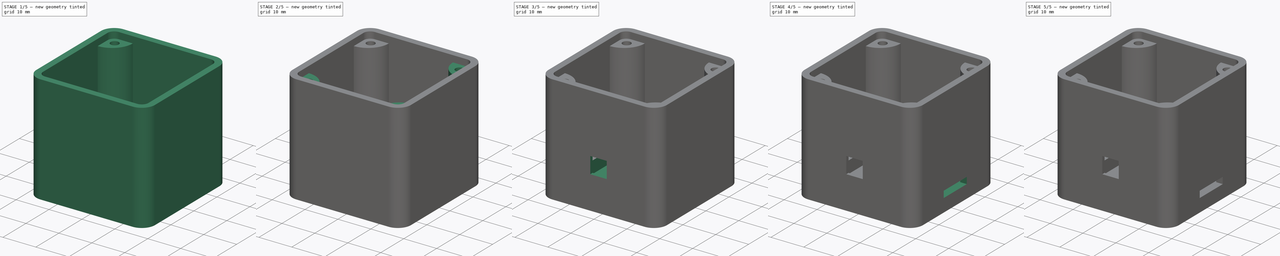
[diagram: build sequence overview — one tinted view per stage of 5, left to right]
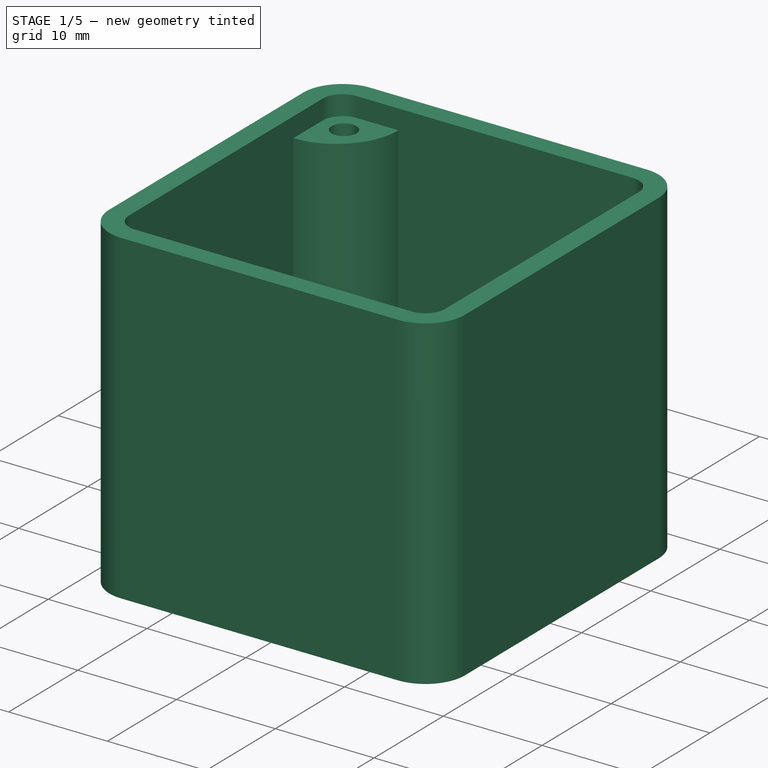
[diagram: stage 1 of 5 — iso view after this stage's code; geometry added in this stage tinted green]
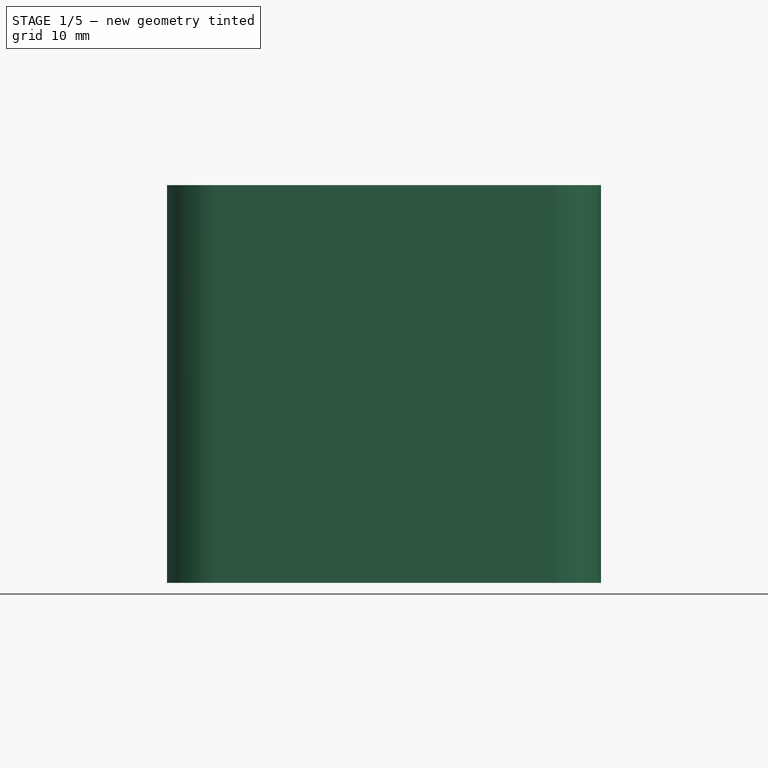
[diagram: stage 1 of 5 — front view after this stage's code; geometry added in this stage tinted green]
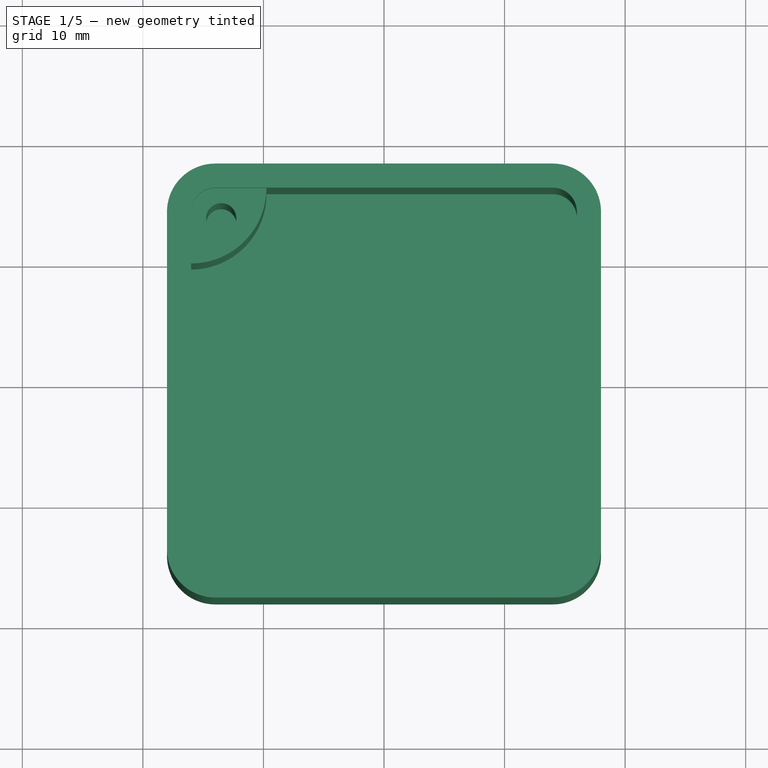
[diagram: stage 1 of 5 — top view after this stage's code; geometry added in this stage tinted green]
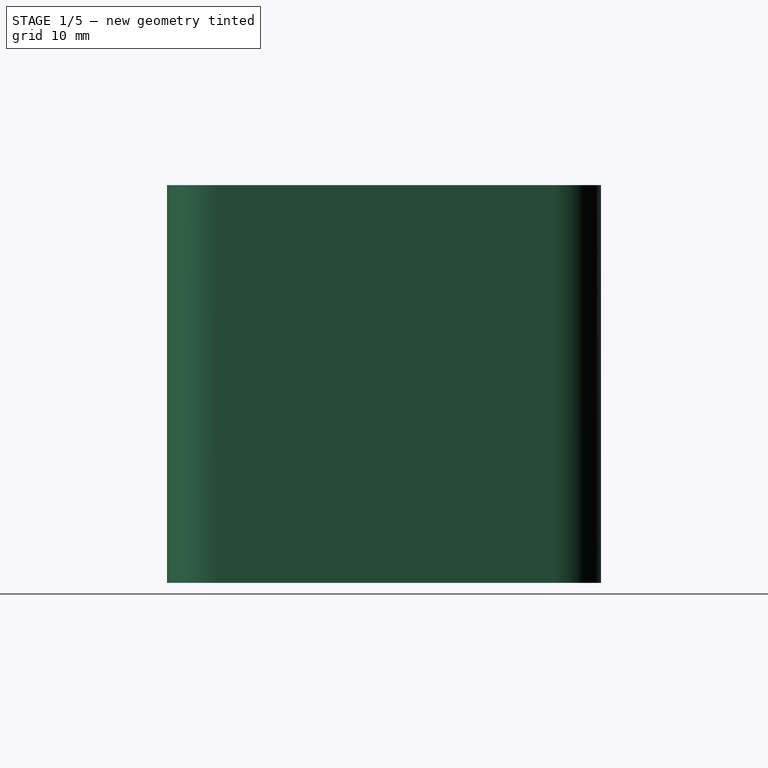
[diagram: stage 1 of 5 — right view after this stage's code; geometry added in this stage tinted green]
FCSTD DOCUMENT  (FreeCAD 0.20R29603 (Git))
Label: qwesp32sensecase
License: All rights reserved
LicenseURL: http://en.wikipedia.org/wiki/All_rights_reserved
objects: Sketcher::SketchObject×17, PartDesign::Pocket×9, PartDesign::Pad×5, PartDesign::Mirrored×4, PartDesign::MultiTransform×2, PartDesign::Body×2, Spreadsheet::Sheet×1, PartDesign::Chamfer×1, App::Part×1
note: 55 computed .brp shape members not serialized (recipe doc carries the construction recipe); baked Part::Feature solids carry a one-line shape summary decoded from their .brp

FEATURE [Sketcher::SketchObject] Sketch
  AttachmentOffset = pos=(0,0,-2) rot=(0,0,1;0rad)
  FullyConstrained = true
  MapMode = 5
  Placement = pos=(0,0,-2) rot=(0,0,1;0rad)
  Support = -> [XY_Plane]
  expr: .AttachmentOffset.Base.z = -Spreadsheet.box_wall_thickness
  expr: Constraints[20] = Spreadsheet.outside_radius
  expr: Constraints[21] = Spreadsheet.box_length
  expr: Constraints[22] = Spreadsheet.box_width
  sketch-geometry (10):
    g0: ArcOfCircle CenterX=-14 CenterY=14 CenterZ=0 NormalX=0 NormalY=0 NormalZ=1 AngleXU=0 Radius=4 StartAngle=1.5708 EndAngle=3.14159
    g1: LineSegment StartX=-14 StartY=18 StartZ=0 EndX=14 EndY=18 EndZ=0
    g2: ArcOfCircle CenterX=14 CenterY=14 CenterZ=0 NormalX=0 NormalY=0 NormalZ=1 AngleXU=0 Radius=4 StartAngle=2.7e-15 EndAngle=1.5708
    g3: LineSegment StartX=18 StartY=14 StartZ=0 EndX=18 EndY=-14 EndZ=0
    g4: ArcOfCircle CenterX=14 CenterY=-14 CenterZ=0 NormalX=0 NormalY=0 NormalZ=1 AngleXU=0 Radius=4 StartAngle=4.71239 EndAngle=6.28319
    g5: LineSegment StartX=14 StartY=-18 StartZ=0 EndX=-14 EndY=-18 EndZ=0
    g6: ArcOfCircle CenterX=-14 CenterY=-14 CenterZ=0 NormalX=0 NormalY=0 NormalZ=1 AngleXU=0 Radius=4 StartAngle=3.14159 EndAngle=4.71239
    g7: LineSegment StartX=-18 StartY=-14 StartZ=0 EndX=-18 EndY=14 EndZ=0
    g8: GeomPoint X=-18 Y=18 Z=0
    g9: GeomPoint X=18 Y=-18 Z=0
  constraints (23):
    c: Tangent(g0,g1) = 1.5708
    c: Tangent(g1,g2) = 1.5708
    c: Tangent(g2,g3) = 1.5708
    c: Tangent(g3,g4) = 1.5708
    c: Tangent(g4,g5) = 1.5708
    c: Tangent(g5,g6) = 1.5708
    c: Tangent(g6,g7) = 1.5708
    c: Tangent(g7,g0) = 1.5708
    c: Horizontal(g1)
    c: Horizontal(g5)
    c: Vertical(g3)
    c: Vertical(g7)
    c: Equal(g0,g2)
    c: Equal(g2,g4)
    c: Equal(g4,g6)
    c: PointOnObject(g8,g1)
    c: PointOnObject(g8,g7)
    c: PointOnObject(g9,g3)
    c: PointOnObject(g9,g5)
    c: Symmetric(g0,g4,g-1)
    c: Radius(g0) = 4
    c: DistanceX(g0,g2) = 36
    c: DistanceY(g4,g1) = 36
FEATURE [PartDesign::Pad] Pad  label="outer"
  Direction = (0,0,1)
  Length = 33
  Length2 = 10
  Profile = -> Sketch
  ReferenceAxis = -> Sketch [N_Axis]
  Type = 0
  expr: Length = Spreadsheet.box_height
FEATURE [Spreadsheet::Sheet] Spreadsheet
  cells = A2=box_length; B2(box_length)=36; A3=box_width; B3(box_width)=36; A4=box_height; B4(box_height)=33; A5=outside_radius; B5(outside_radius)==B7 + 2; C5=Calculated; A6=inside_radius; B6(inside_radius)==B5 - B7; C6=Calculated; A7=box_wall_thickness; B7(box_wall_thickness)=2; A8=hole_dia; B8(hole_dia)=2.5; A9=lug_height; B9(lug_height)==B4 - B7 * 2; C9=Calculated; A10=lug_radius; B10(lug_radius)==B8 * 2.5; C10=Calculated; A11=hole_center_length; B11(hole_center_length)==B13 / 2 - B8; C11=Calculated; A12=hole_center_width; B12(hole_center_width)==B14 / 2 - B8; C12=Calculated; A13=box_inside_length; B13(box_inside_length)==B2 - B7 * 2; C13=Calculated; A14=box_inside_width; B14(box_inside_width)==B3 - 2 * B7; C14=Calculated; A16=clearance_sides; B16(clearance_sides)=0.3; A17=clearance_hole; B17(clearance_hole)==B8 + 2; C17=Calculated; A18=lid_height; B18(lid_height)=2; C18=Calculated
FEATURE [Sketcher::SketchObject] Sketch001
  FullyConstrained = true
  expr: Constraints[20] = Spreadsheet.inside_radius
  expr: Constraints[21] = Spreadsheet.box_inside_length
  expr: Constraints[22] = Spreadsheet.box_inside_width
  sketch-geometry (10):
    g0: ArcOfCircle CenterX=-14 CenterY=14 CenterZ=0 NormalX=0 NormalY=0 NormalZ=1 AngleXU=0 Radius=2 StartAngle=1.5708 EndAngle=3.14159
    g1: LineSegment StartX=-14 StartY=16 StartZ=0 EndX=14 EndY=16 EndZ=0
    g2: ArcOfCircle CenterX=14 CenterY=14 CenterZ=0 NormalX=0 NormalY=0 NormalZ=1 AngleXU=0 Radius=2 StartAngle=1.8e-15 EndAngle=1.5708
    g3: LineSegment StartX=16 StartY=14 StartZ=0 EndX=16 EndY=-14 EndZ=0
    g4: ArcOfCircle CenterX=14 CenterY=-14 CenterZ=0 NormalX=0 NormalY=0 NormalZ=1 AngleXU=0 Radius=2 StartAngle=4.71239 EndAngle=6.28319
    g5: LineSegment StartX=14 StartY=-16 StartZ=0 EndX=-14 EndY=-16 EndZ=0
    g6: ArcOfCircle CenterX=-14 CenterY=-14 CenterZ=0 NormalX=0 NormalY=0 NormalZ=1 AngleXU=0 Radius=2 StartAngle=3.14159 EndAngle=4.71239
    g7: LineSegment StartX=-16 StartY=-14 StartZ=0 EndX=-16 EndY=14 EndZ=0
    g8: GeomPoint X=-16 Y=16 Z=0
    g9: GeomPoint X=16 Y=-16 Z=0
  constraints (23):
    c: Tangent(g0,g1) = 1.5708
    c: Tangent(g1,g2) = 1.5708
    c: Tangent(g2,g3) = 1.5708
    c: Tangent(g3,g4) = 1.5708
    c: Tangent(g4,g5) = 1.5708
    c: Tangent(g5,g6) = 1.5708
    c: Tangent(g6,g7) = 1.5708
    c: Tangent(g7,g0) = 1.5708
    c: Horizontal(g1)
    c: Horizontal(g5)
    c: Vertical(g3)
    c: Vertical(g7)
    c: Equal(g0,g2)
    c: Equal(g2,g4)
    c: Equal(g4,g6)
    c: PointOnObject(g8,g1)
    c: PointOnObject(g8,g7)
    c: PointOnObject(g9,g3)
    c: PointOnObject(g9,g5)
    c: Symmetric(g0,g4,g-1)
    c: Radius(g0) = 2
    c: DistanceX(g6,g3) = 32
    c: DistanceY(g5,g0) = 32
FEATURE [PartDesign::Pocket] Pocket  label="innerwall"
  BaseFeature = -> Pad
  Direction = (0,0,-1)
  Length = 36
  Length2 = 5
  Profile = -> Sketch001
  ReferenceAxis = -> Sketch001 [N_Axis]
  Reversed = true
  Type = 1
FEATURE [Sketcher::SketchObject] Sketch002
  FullyConstrained = true
  MapMode = 5
  Support = -> [XY_Plane]
  expr: Constraints[10] = Spreadsheet.hole_center_length
  expr: Constraints[11] = Spreadsheet.hole_center_width
  expr: Constraints[6] = Spreadsheet.hole_dia
  expr: Constraints[7] = Spreadsheet.lug_radius
  expr: Constraints[8] = Spreadsheet.hole_dia
  expr: Constraints[9] = Spreadsheet.hole_dia
  sketch-geometry (4):
    g0: LineSegment StartX=-16 StartY=16 StartZ=0 EndX=-9.75 EndY=16 EndZ=0
    g1: LineSegment StartX=-16 StartY=16 StartZ=0 EndX=-16 EndY=9.75 EndZ=0
    g2: ArcOfCircle CenterX=-16 CenterY=16 CenterZ=0 NormalX=0 NormalY=0 NormalZ=1 AngleXU=0 Radius=6.25 StartAngle=4.71239 EndAngle=6.28319
    g3: Circle CenterX=-13.5 CenterY=13.5 CenterZ=0 NormalX=0 NormalY=0 NormalZ=1 AngleXU=0 Radius=1.25
  constraints (12):
    c: Horizontal(g0)
    c: Coincident(g1,g0)
    c: Vertical(g1)
    c: Coincident(g2,g0)
    c: Coincident(g2,g0)
    c: Coincident(g2,g1)
    c: Diameter(g3) = 2.5
    c: Radius(g2) = 6.25
    c: DistanceX(g0,g3) = 2.5
    c: DistanceY(g3,g0) = 2.5
    c: DistanceX(g3,g-1) = 13.5
    c: DistanceY(g-1,g3) = 13.5
FEATURE [PartDesign::Pad] Pad001  label="screw housing"
  BaseFeature = -> Pocket
  Direction = (0,0,1)
  Length = 29
  Length2 = 10
  Profile = -> Sketch002
  ReferenceAxis = -> Sketch002 [N_Axis]
  Type = 0
  expr: Length = Spreadsheet.lug_height
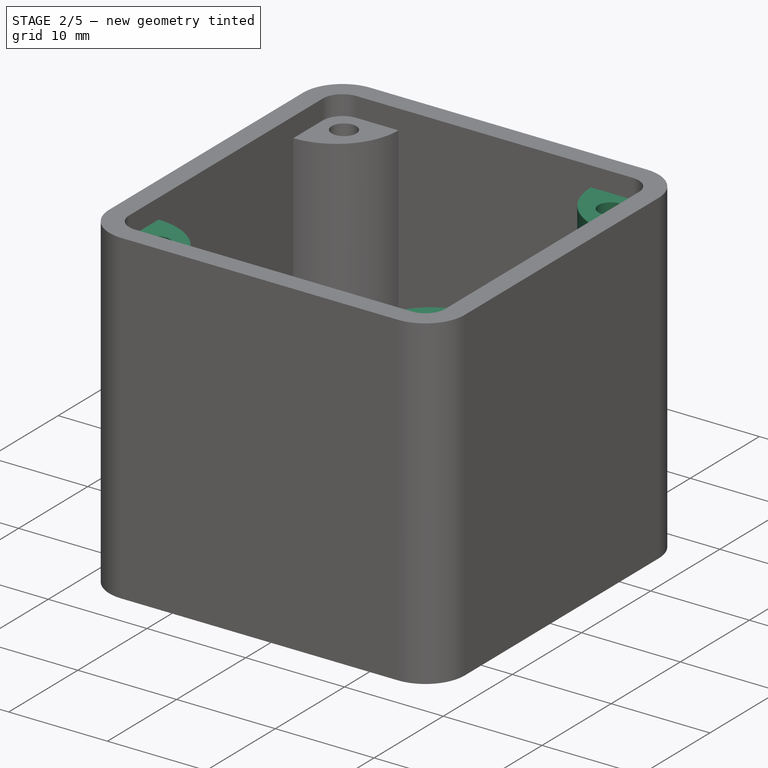
[diagram: stage 2 of 5 — iso view after this stage's code; geometry added in this stage tinted green]
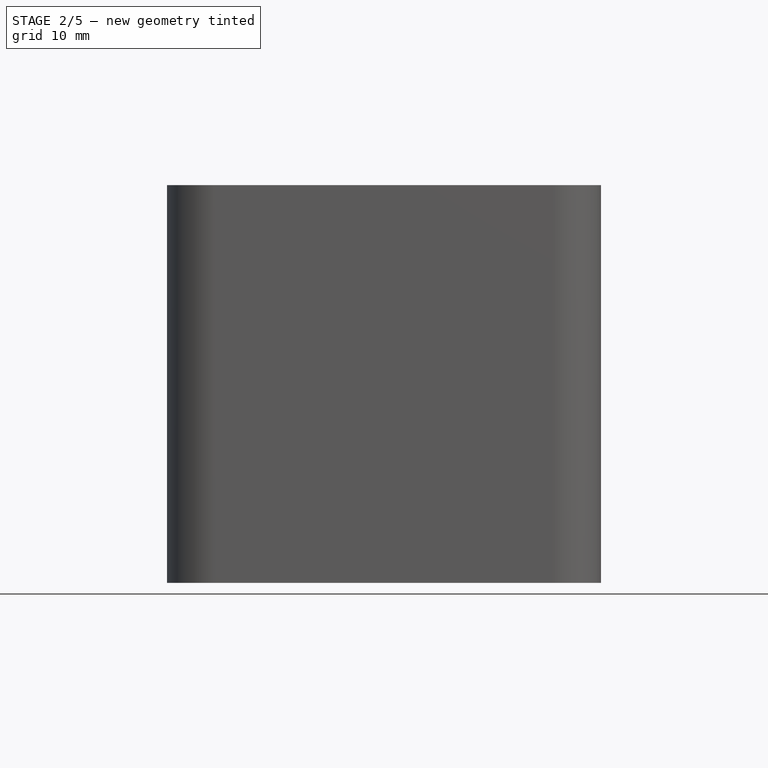
[diagram: stage 2 of 5 — front view after this stage's code; geometry added in this stage tinted green]
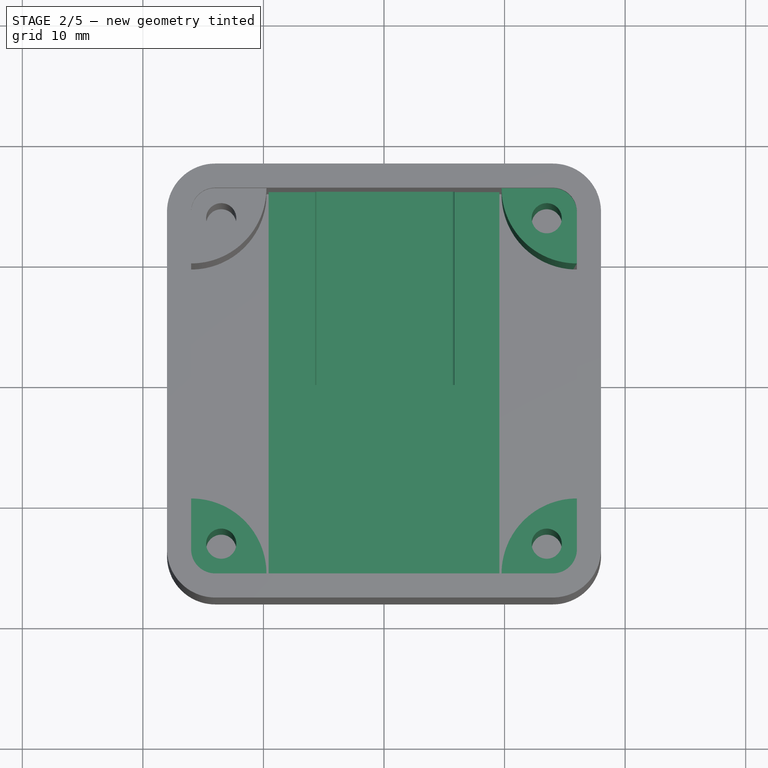
[diagram: stage 2 of 5 — top view after this stage's code; geometry added in this stage tinted green]
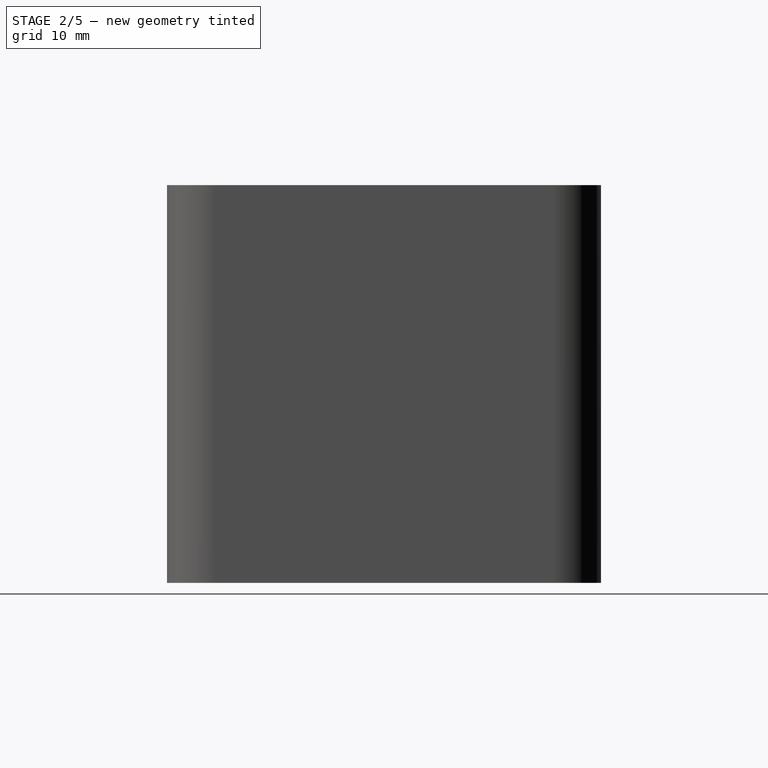
[diagram: stage 2 of 5 — right view after this stage's code; geometry added in this stage tinted green]
FEATURE [PartDesign::Mirrored] Mirrored
  MirrorPlane = -> Sketch002 [V_Axis]
FEATURE [PartDesign::Mirrored] Mirrored001
  MirrorPlane = -> Sketch002 [H_Axis]
FEATURE [PartDesign::MultiTransform] MultiTransform
  BaseFeature = -> Pad001
  Originals = -> [Pad001]
  Transformations = -> [Mirrored,Mirrored001]
FEATURE [Sketcher::SketchObject] Sketch007
  FullyConstrained = false
  MapMode = 5
  Support = -> [XY_Plane]
  sketch-geometry (1):
    g0: Circle CenterX=0.161875 CenterY=10.4279 CenterZ=0 NormalX=0 NormalY=0 NormalZ=1 AngleXU=0 Radius=3.75
  constraints (1):
    c: Radius(g0) = 3.75
FEATURE [PartDesign::Pocket] Pocket003  label="Camera Hole"
  BaseFeature = -> MultiTransform
  Direction = (0,0,-1)
  Length = 5
  Length2 = 5
  Profile = -> Sketch007
  ReferenceAxis = -> Sketch007 [N_Axis]
  Type = 0
FEATURE [Sketcher::SketchObject] Sketch008
  FullyConstrained = false
  MapMode = 5
  Support = -> [XY_Plane]
  sketch-geometry (5):
    g0: LineSegment StartX=9.57528 StartY=16 StartZ=0 EndX=9.57528 EndY=-16 EndZ=0
    g1: LineSegment StartX=9.57528 StartY=-16 StartZ=0 EndX=-9.57528 EndY=-16 EndZ=0
    g2: LineSegment StartX=-9.57528 StartY=-16 StartZ=0 EndX=-9.57528 EndY=16 EndZ=0
    g3: LineSegment StartX=-9.57528 StartY=16 StartZ=0 EndX=9.57528 EndY=16 EndZ=0
    g4: GeomPoint X=0 Y=0 Z=0
  constraints (10):
    c: Coincident(g0,g1)
    c: Coincident(g1,g2)
    c: Coincident(g2,g3)
    c: Coincident(g3,g0)
    c: Horizontal(g1)
    c: Horizontal(g3)
    c: Vertical(g0)
    c: Vertical(g2)
    c: Symmetric(g1,g0,g4)
    c: Coincident(g4,g-1)
FEATURE [PartDesign::Pad] Pad004  label="esp32housing"
  BaseFeature = -> Pocket003
  Direction = (0,0,1)
  Length = 10
  Length2 = 10
  Profile = -> Sketch008
  ReferenceAxis = -> Sketch008 [N_Axis]
  Type = 0
FEATURE [Sketcher::SketchObject] Sketch009
  FullyConstrained = false
  MapMode = 5
  Support = -> [XY_Plane]
  sketch-geometry (8):
    g0: LineSegment StartX=-8.94451 StartY=15.9483 StartZ=0 EndX=9.15931 EndY=15.9483 EndZ=0
    g1: LineSegment StartX=9.15931 StartY=15.9483 StartZ=0 EndX=9.15931 EndY=-3.15926 EndZ=0
    g2: LineSegment StartX=-8.94451 StartY=-3.04504 StartZ=0 EndX=-11.0736 EndY=-3.04504 EndZ=0
    g3: LineSegment StartX=-11.0736 StartY=-3.04504 StartZ=0 EndX=-11.0736 EndY=-7.05174 EndZ=0
    g4: LineSegment StartX=-8.94451 StartY=15.9483 StartZ=0 EndX=-8.94451 EndY=-3.04504 EndZ=0
    g5: LineSegment StartX=9.15931 StartY=-3.15926 StartZ=0 EndX=11.3572 EndY=-3.15926 EndZ=0
    g6: LineSegment StartX=11.3572 StartY=-3.15926 StartZ=0 EndX=11.3572 EndY=-7.05174 EndZ=0
    g7: LineSegment StartX=-11.0736 StartY=-7.05174 StartZ=0 EndX=11.3572 EndY=-7.05174 EndZ=0
  constraints (16):
    c: Coincident(g0,g1)
    c: Horizontal(g0)
    c: Vertical(g1)
    c: Horizontal(g2)
    c: Coincident(g2,g3)
    c: Vertical(g3)
    c: Coincident(g0,g4)
    c: Coincident(g4,g2)
    c: Vertical(g4)
    c: Horizontal(g5)
    c: Coincident(g5,g6)
    c: Vertical(g6)
    c: Coincident(g1,g5)
    c: Coincident(g3,g7)
    c: Coincident(g7,g6)
    c: Horizontal(g7)
FEATURE [Sketcher::SketchObject] Sketch010
  FullyConstrained = false
  MapMode = 5
  Placement = pos=(0,0,0) rot=(1,0,0;1.5708rad)
  Support = -> [XZ_Plane001]
  sketch-geometry (9):
    g0: LineSegment StartX=5.84769 StartY=11.4132 StartZ=0 EndX=5.84769 EndY=6.87759 EndZ=0
    g1: LineSegment StartX=5.60961 StartY=6.63951 StartZ=0 EndX=-5.45494 EndY=6.63951 EndZ=0
    g2: LineSegment StartX=-5.69302 StartY=6.87759 StartZ=0 EndX=-5.69302 EndY=11.4132 EndZ=0
    g3: LineSegment StartX=-5.45494 StartY=11.6512 StartZ=0 EndX=5.60961 EndY=11.6512 EndZ=0
    g4: GeomPoint X=0 Y=5.50847 Z=0
    g5: ArcOfCircle CenterX=-5.45494 CenterY=11.4132 CenterZ=0 NormalX=0 NormalY=0 NormalZ=1 AngleXU=0 Radius=0.238084 StartAngle=1.5708 EndAngle=3.14159
    g6: ArcOfCircle CenterX=-5.45494 CenterY=6.87759 CenterZ=0 NormalX=0 NormalY=0 NormalZ=1 AngleXU=0 Radius=0.238084 StartAngle=3.14159 EndAngle=4.71239
    g7: ArcOfCircle CenterX=5.60961 CenterY=6.87759 CenterZ=0 NormalX=0 NormalY=0 NormalZ=1 AngleXU=0 Radius=0.238084 StartAngle=4.71239 EndAngle=6.28319
    g8: ArcOfCircle CenterX=5.60961 CenterY=11.4132 CenterZ=0 NormalX=0 NormalY=0 NormalZ=1 AngleXU=0 Radius=0.238084 StartAngle=-2.7e-15 EndAngle=1.5708
  constraints (16):
    c: Horizontal(g1)
    c: Horizontal(g3)
    c: Vertical(g0)
    c: Vertical(g2)
    c: PointOnObject(g4,g-2)
    c: Tangent(g2,g5) = 1.5708
    c: Tangent(g3,g5) = 1.5708
    c: Tangent(g2,g6) = 1.5708
    c: Tangent(g1,g6) = 1.5708
    c: Tangent(g1,g7) = 1.5708
    c: Tangent(g0,g7) = 1.5708
    c: Tangent(g0,g8) = 1.5708
    c: Tangent(g3,g8) = 1.5708
    c: Equal(g5,g8)
    c: Equal(g8,g7)
    c: Equal(g7,g6)
FEATURE [PartDesign::Pocket] Pocket005
  BaseFeature = -> Pad004
  Direction = (0,1,2e-16)
  Length = 18
  Length2 = 5
  Profile = -> Sketch010
  ReferenceAxis = -> Sketch010 [N_Axis]
  Type = 0
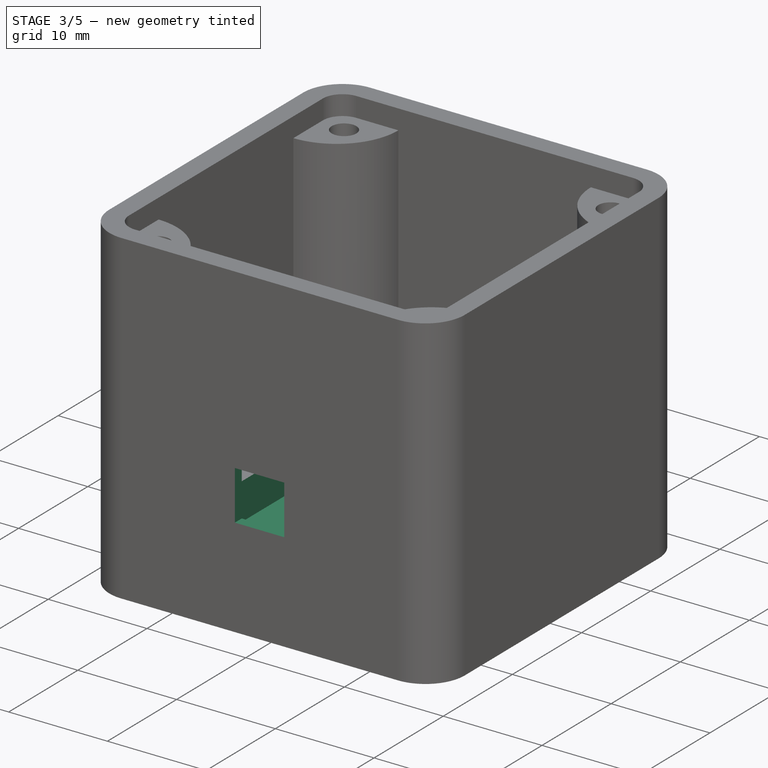
[diagram: stage 3 of 5 — iso view after this stage's code; geometry added in this stage tinted green]
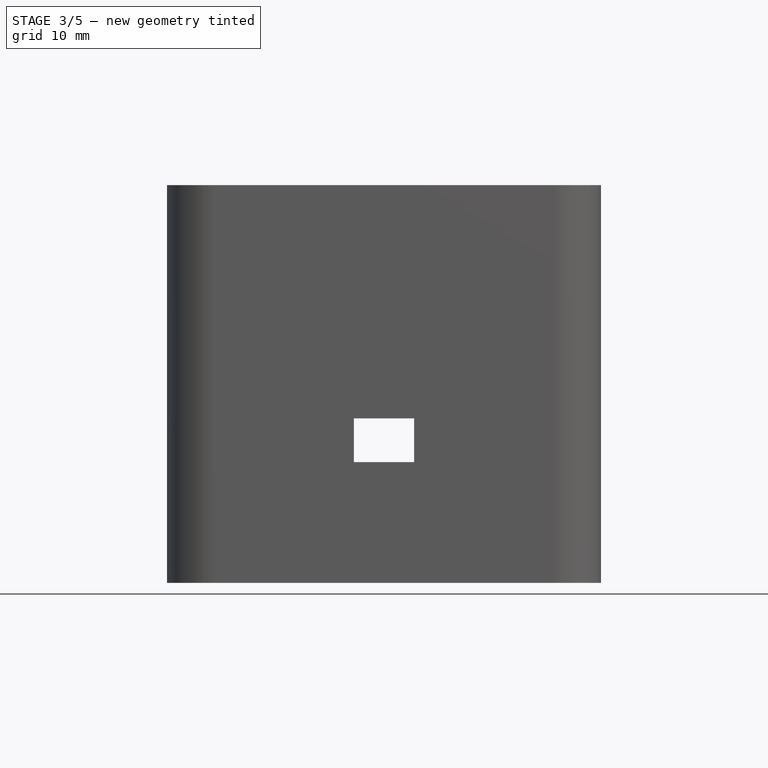
[diagram: stage 3 of 5 — front view after this stage's code; geometry added in this stage tinted green]
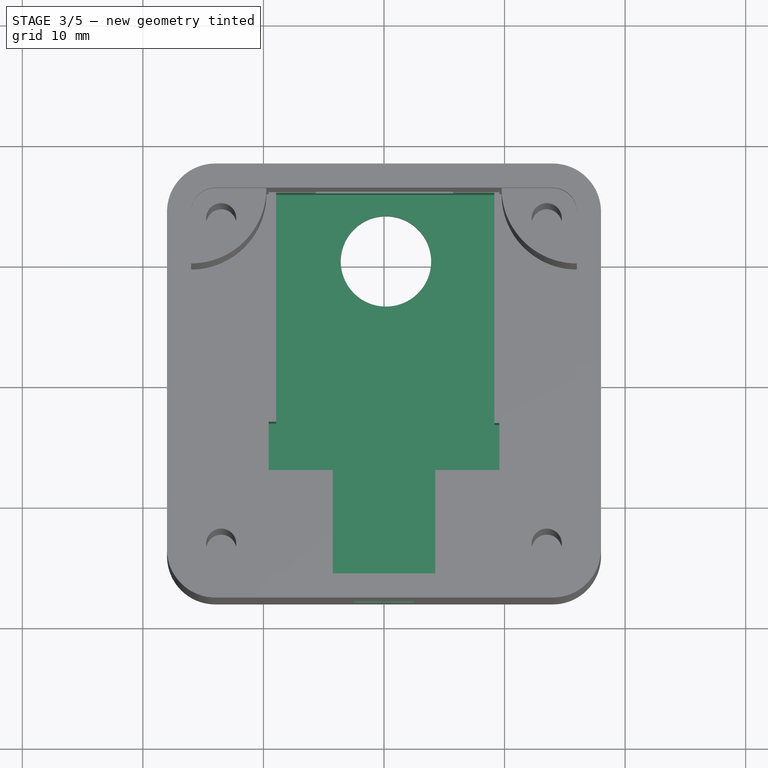
[diagram: stage 3 of 5 — top view after this stage's code; geometry added in this stage tinted green]
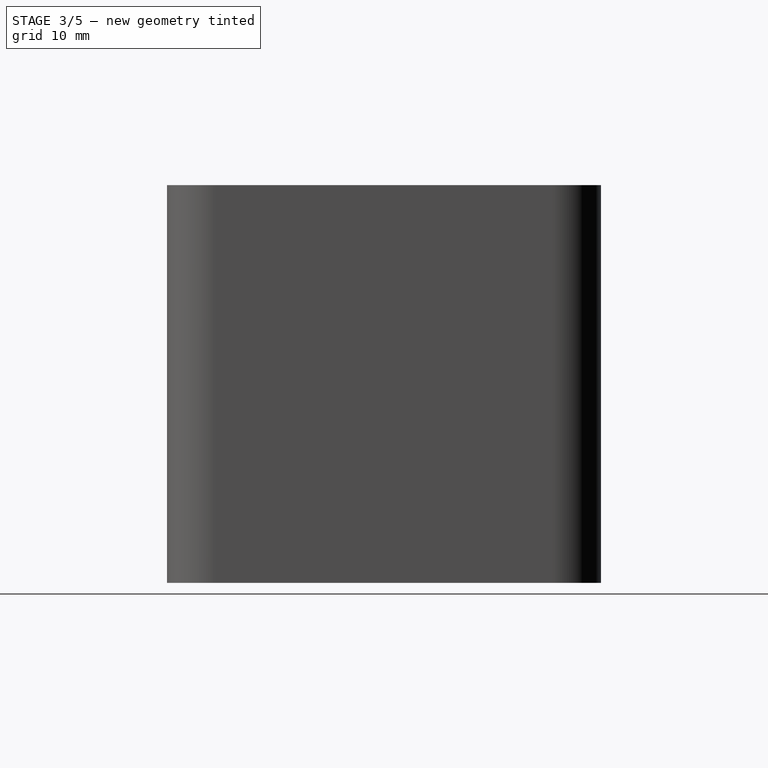
[diagram: stage 3 of 5 — right view after this stage's code; geometry added in this stage tinted green]
FEATURE [PartDesign::Pocket] Pocket006
  BaseFeature = -> Pocket005
  Direction = (0,0,-1)
  Length = 5
  Length2 = 5
  Profile = -> Sketch009
  ReferenceAxis = -> Sketch009 [N_Axis]
  Reversed = true
  Type = 1
FEATURE [Sketcher::SketchObject] Sketch011
  FullyConstrained = false
  MapMode = 5
  Placement = pos=(0,0,0) rot=(1,0,0;1.5708rad)
  Support = -> [XZ_Plane001]
  sketch-geometry (5):
    g0: LineSegment StartX=4.25 StartY=14.7786 StartZ=0 EndX=4.25 EndY=6.27857 EndZ=0
    g1: LineSegment StartX=4.25 StartY=6.27857 StartZ=0 EndX=-4.25 EndY=6.27857 EndZ=0
    g2: LineSegment StartX=-4.25 StartY=6.27857 StartZ=0 EndX=-4.25 EndY=14.7786 EndZ=0
    g3: LineSegment StartX=-4.25 StartY=14.7786 StartZ=0 EndX=4.25 EndY=14.7786 EndZ=0
    g4: GeomPoint X=0 Y=10.5286 Z=0
  constraints (12):
    c: Coincident(g0,g1)
    c: Coincident(g1,g2)
    c: Coincident(g2,g3)
    c: Coincident(g3,g0)
    c: Horizontal(g1)
    c: Horizontal(g3)
    c: Vertical(g0)
    c: Vertical(g2)
    c: Symmetric(g1,g0,g4)
    c: PointOnObject(g4,g-2)
    c: DistanceX(g3,g3) = 8.5
    c: DistanceY(g0,g0) = 8.5
FEATURE [PartDesign::Pocket] Pocket007  label="powerswitch socket"
  BaseFeature = -> Pocket006
  Direction = (0,1,2e-16)
  Length = 17
  Length2 = 5
  Profile = -> Sketch011
  ReferenceAxis = -> Sketch011 [N_Axis]
  Reversed = true
  Type = 0
FEATURE [Sketcher::SketchObject] Sketch012
  FullyConstrained = false
  MapMode = 5
  Placement = pos=(0,0,0) rot=(1,0,0;1.5708rad)
  Support = -> [XZ_Plane]
  sketch-geometry (5):
    g0: LineSegment StartX=2.5 StartY=13.0204 StartZ=0 EndX=2.5 EndY=8.0204 EndZ=0
    g1: LineSegment StartX=2.5 StartY=8.0204 StartZ=0 EndX=-2.5 EndY=8.0204 EndZ=0
    g2: LineSegment StartX=-2.5 StartY=8.0204 StartZ=0 EndX=-2.5 EndY=13.0204 EndZ=0
    g3: LineSegment StartX=-2.5 StartY=13.0204 StartZ=0 EndX=2.5 EndY=13.0204 EndZ=0
    g4: GeomPoint X=0 Y=10.5204 Z=0
  constraints (12):
    c: Coincident(g0,g1)
    c: Coincident(g1,g2)
    c: Coincident(g2,g3)
    c: Coincident(g3,g0)
    c: Horizontal(g1)
    c: Horizontal(g3)
    c: Vertical(g0)
    c: Vertical(g2)
    c: Symmetric(g1,g0,g4)
    c: PointOnObject(g4,g-2)
    c: DistanceX(g3,g3) = 5
    c: DistanceY(g0,g0) = 5
FEATURE [PartDesign::Pocket] Pocket008
  BaseFeature = -> Pocket007
  Direction = (0,1,2e-16)
  Length = 20
  Length2 = 5
  Profile = -> Sketch012
  ReferenceAxis = -> Sketch012 [N_Axis]
  Reversed = true
  Type = 0
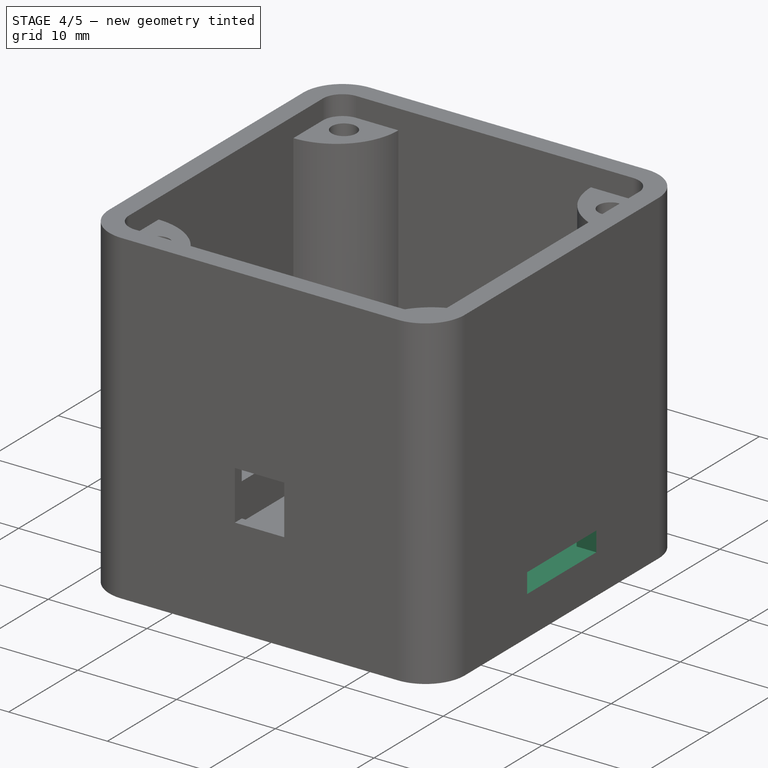
[diagram: stage 4 of 5 — iso view after this stage's code; geometry added in this stage tinted green]
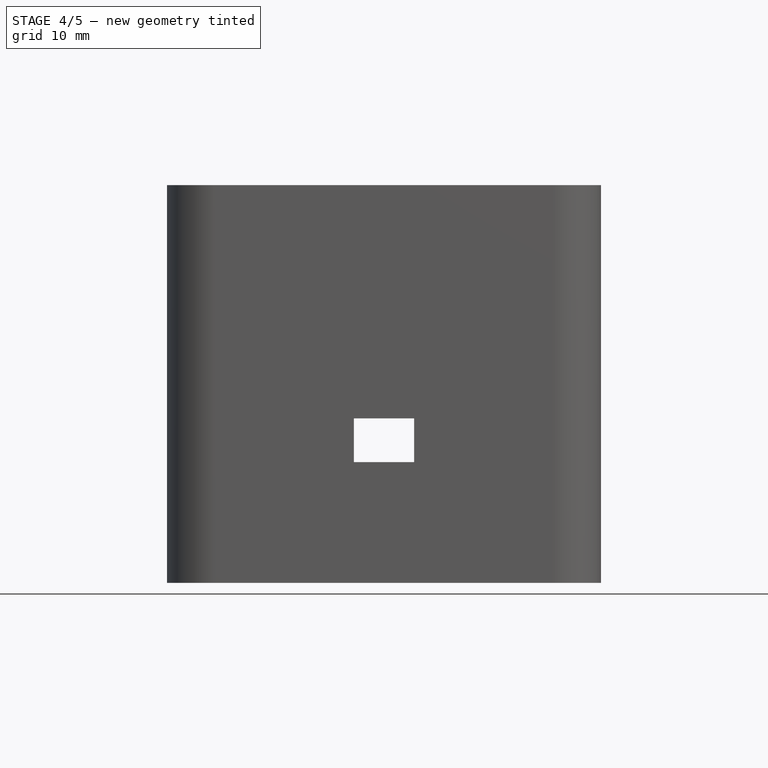
[diagram: stage 4 of 5 — front view after this stage's code; geometry added in this stage tinted green]
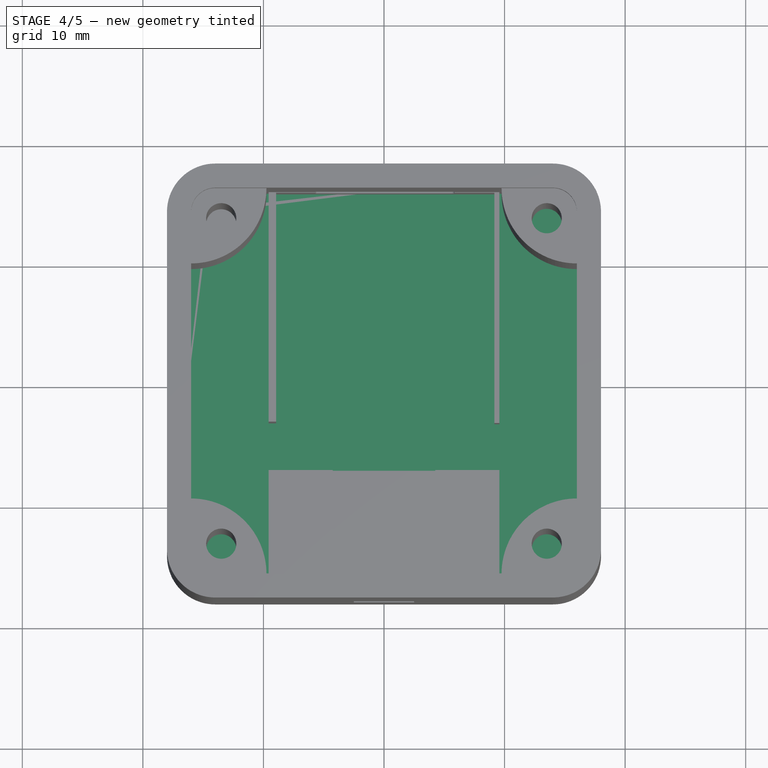
[diagram: stage 4 of 5 — top view after this stage's code; geometry added in this stage tinted green]
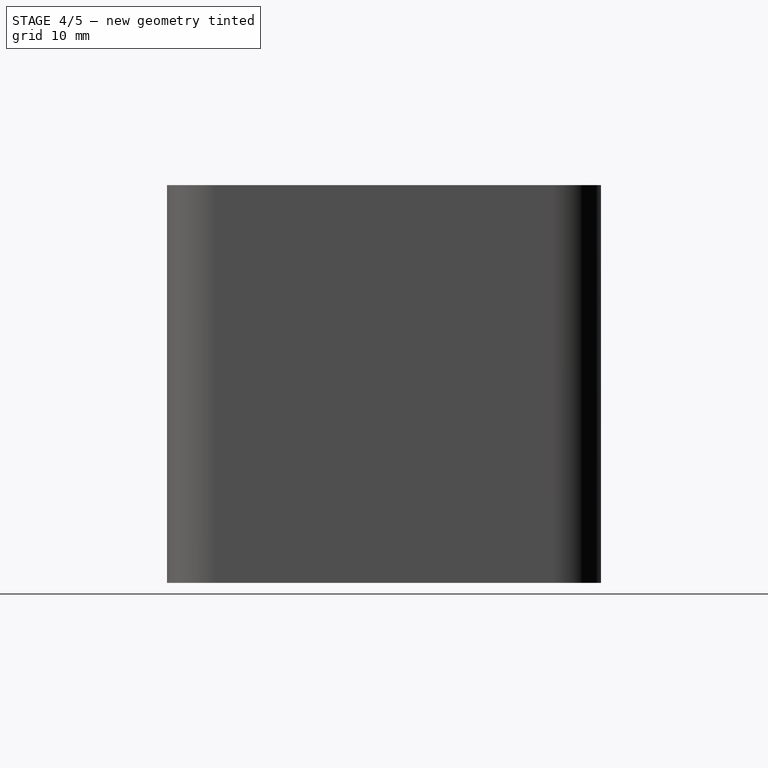
[diagram: stage 4 of 5 — right view after this stage's code; geometry added in this stage tinted green]
FEATURE [Sketcher::SketchObject] Sketch003
  FullyConstrained = true
  MapMode = 5
  Support = -> [XY_Plane002]
  expr: Constraints[19] = Spreadsheet.outside_radius
  expr: Constraints[20] = Spreadsheet.box_width
  expr: Constraints[21] = Spreadsheet.box_length
  sketch-geometry (10):
    g0: ArcOfCircle CenterX=-14 CenterY=14 CenterZ=0 NormalX=0 NormalY=0 NormalZ=1 AngleXU=0 Radius=4 StartAngle=1.5708 EndAngle=3.14159
    g1: LineSegment StartX=-14 StartY=18 StartZ=0 EndX=14 EndY=18 EndZ=0
    g2: ArcOfCircle CenterX=14 CenterY=14 CenterZ=0 NormalX=0 NormalY=0 NormalZ=1 AngleXU=0 Radius=4 StartAngle=2.7e-15 EndAngle=1.5708
    g3: LineSegment StartX=18 StartY=14 StartZ=0 EndX=18 EndY=-14 EndZ=0
    g4: ArcOfCircle CenterX=14 CenterY=-14 CenterZ=0 NormalX=0 NormalY=0 NormalZ=1 AngleXU=0 Radius=4 StartAngle=4.71239 EndAngle=6.28319
    g5: LineSegment StartX=14 StartY=-18 StartZ=0 EndX=-14 EndY=-18 EndZ=0
    g6: ArcOfCircle CenterX=-14 CenterY=-14 CenterZ=0 NormalX=0 NormalY=0 NormalZ=1 AngleXU=0 Radius=4 StartAngle=3.14159 EndAngle=4.71239
    g7: LineSegment StartX=-18 StartY=-14 StartZ=0 EndX=-18 EndY=14 EndZ=0
    g8: GeomPoint X=-18 Y=18 Z=0
    g9: GeomPoint X=18 Y=-18 Z=0
  constraints (23):
    c: Tangent(g0,g1) = 1.5708
    c: Tangent(g1,g2) = 1.5708
    c: Tangent(g2,g3) = 1.5708
    c: Tangent(g3,g4) = 1.5708
    c: Tangent(g4,g5) = 1.5708
    c: Tangent(g5,g6) = 1.5708
    c: Tangent(g6,g7) = 1.5708
    c: Tangent(g7,g0) = 1.5708
    c: Horizontal(g1)
    c: Horizontal(g5)
    c: Vertical(g3)
    c: Vertical(g7)
    c: Equal(g0,g2)
    c: Equal(g2,g4)
    c: Equal(g4,g6)
    c: PointOnObject(g8,g1)
    c: PointOnObject(g8,g7)
    c: PointOnObject(g9,g3)
    c: PointOnObject(g9,g5)
    c: Radius(g0) = 4
    c: DistanceY(g5,g0) = 36
    c: DistanceX(g0,g2) = 36
    c: Symmetric(g0,g4,g-1)
FEATURE [PartDesign::Pad] Pad002
  Direction = (0,0,1)
  Length = 2
  Length2 = 10
  Profile = -> Sketch003
  ReferenceAxis = -> Sketch003 [N_Axis]
  Type = 0
  expr: Length = Spreadsheet.lid_height
FEATURE [Sketcher::SketchObject] Sketch004
  FullyConstrained = true
  MapMode = 5
  Support = -> [XY_Plane002]
  expr: Constraints[20] = Spreadsheet.inside_radius
  expr: Constraints[21] = Spreadsheet.box_inside_width
  expr: Constraints[22] = Spreadsheet.box_inside_length
  sketch-geometry (10):
    g0: ArcOfCircle CenterX=-14 CenterY=14 CenterZ=0 NormalX=0 NormalY=0 NormalZ=1 AngleXU=0 Radius=2 StartAngle=1.5708 EndAngle=3.14159
    g1: LineSegment StartX=-14 StartY=16 StartZ=0 EndX=14 EndY=16 EndZ=0
    g2: ArcOfCircle CenterX=14 CenterY=14 CenterZ=0 NormalX=0 NormalY=0 NormalZ=1 AngleXU=0 Radius=2 StartAngle=1.8e-15 EndAngle=1.5708
    g3: LineSegment StartX=16 StartY=14 StartZ=0 EndX=16 EndY=-14 EndZ=0
    g4: ArcOfCircle CenterX=14 CenterY=-14 CenterZ=0 NormalX=0 NormalY=0 NormalZ=1 AngleXU=0 Radius=2 StartAngle=4.71239 EndAngle=6.28319
    g5: LineSegment StartX=14 StartY=-16 StartZ=0 EndX=-14 EndY=-16 EndZ=0
    g6: ArcOfCircle CenterX=-14 CenterY=-14 CenterZ=0 NormalX=0 NormalY=0 NormalZ=1 AngleXU=0 Radius=2 StartAngle=3.14159 EndAngle=4.71239
    g7: LineSegment StartX=-16 StartY=-14 StartZ=0 EndX=-16 EndY=14 EndZ=0
    g8: GeomPoint X=-16 Y=16 Z=0
    g9: GeomPoint X=16 Y=-16 Z=0
  constraints (23):
    c: Tangent(g0,g1) = 1.5708
    c: Tangent(g1,g2) = 1.5708
    c: Tangent(g2,g3) = 1.5708
    c: Tangent(g3,g4) = 1.5708
    c: Tangent(g4,g5) = 1.5708
    c: Tangent(g5,g6) = 1.5708
    c: Tangent(g6,g7) = 1.5708
    c: Tangent(g7,g0) = 1.5708
    c: Horizontal(g1)
    c: Horizontal(g5)
    c: Vertical(g3)
    c: Vertical(g7)
    c: Equal(g0,g2)
    c: Equal(g2,g4)
    c: Equal(g4,g6)
    c: PointOnObject(g8,g1)
    c: PointOnObject(g8,g7)
    c: PointOnObject(g9,g3)
    c: PointOnObject(g9,g5)
    c: Symmetric(g0,g4,g-1)
    c: Radius(g0) = 2
    c: DistanceY(g5,g0) = 32
    c: DistanceX(g0,g2) = 32
FEATURE [PartDesign::Pad] Pad003
  BaseFeature = -> Pad002
  Direction = (0,0,1)
  Length = 1.7
  Length2 = 10
  Profile = -> Sketch004
  ReferenceAxis = -> Sketch004 [N_Axis]
  Reversed = true
  Type = 0
  expr: Length = Spreadsheet.box_wall_thickness - Spreadsheet.clearance_sides
FEATURE [Sketcher::SketchObject] Sketch005
  AttachmentOffset = pos=(0,0,-29) rot=(0,0,1;0rad)
  FullyConstrained = true
  MapMode = 5
  Placement = pos=(0,0,-29) rot=(0,0,1;0rad)
  Support = -> [XY_Plane002]
  expr: .AttachmentOffset.Base.z = -Spreadsheet.lug_height
  expr: Constraints[0] = Spreadsheet.clearance_hole
  expr: Constraints[1] = Spreadsheet.hole_center_length
  expr: Constraints[2] = Spreadsheet.hole_center_width
  sketch-geometry (1):
    g0: Circle CenterX=-13.5 CenterY=13.5 CenterZ=0 NormalX=0 NormalY=0 NormalZ=1 AngleXU=0 Radius=2.25
  constraints (3):
    c: Diameter(g0) = 4.5
    c: DistanceX(g0,g-1) = 13.5
    c: DistanceY(g-1,g0) = 13.5
FEATURE [PartDesign::Pocket] Pocket001
  BaseFeature = -> Pad003
  Direction = (0,0,-1)
  Length = 5
  Length2 = 5
  Profile = -> Sketch005
  ReferenceAxis = -> Sketch005 [N_Axis]
  Reversed = true
  Type = 1
FEATURE [Sketcher::SketchObject] Sketch013
  FullyConstrained = true
  MapMode = 5
  Support = -> [XY_Plane]
  sketch-geometry (1):
    g0: GeomPoint X=0 Y=0 Z=0
  constraints (1):
    c: Coincident(g0,g-1)
FEATURE [Sketcher::SketchObject] Sketch014
  FullyConstrained = true
  MapMode = 5
  Support = -> [XY_Plane002]
  sketch-geometry (5):
    g0: LineSegment StartX=6 StartY=1.5 StartZ=0 EndX=6 EndY=-1.5 EndZ=0
    g1: LineSegment StartX=6 StartY=-1.5 StartZ=0 EndX=-6 EndY=-1.5 EndZ=0
    g2: LineSegment StartX=-6 StartY=-1.5 StartZ=0 EndX=-6 EndY=1.5 EndZ=0
    g3: LineSegment StartX=-6 StartY=1.5 StartZ=0 EndX=6 EndY=1.5 EndZ=0
    g4: GeomPoint X=0 Y=0 Z=0
  constraints (12):
    c: Coincident(g0,g1)
    c: Coincident(g1,g2)
    c: Coincident(g2,g3)
    c: Coincident(g3,g0)
    c: Horizontal(g1)
    c: Horizontal(g3)
    c: Vertical(g0)
    c: Vertical(g2)
    c: Symmetric(g1,g0,g4)
    c: Coincident(g4,g-1)
    c: DistanceY(g0,g0) = 3
    c: DistanceX(g3,g3) = 12
FEATURE [Sketcher::SketchObject] Sketch015
  FullyConstrained = false
  MapMode = 5
  Support = -> [XY_Plane002]
  sketch-geometry (1):
    g0: Circle CenterX=0 CenterY=10.3061 CenterZ=0 NormalX=0 NormalY=0 NormalZ=1 AngleXU=0 Radius=3.75
  constraints (2):
    c: PointOnObject(g0,g-2)
    c: Radius(g0) = 3.75
FEATURE [PartDesign::Body] Body001  label="box-lid"
  Group = -> [Sketch003,Pad002,Sketch004,Pad003,Sketch005,Pocket001,MultiTransform001,Mirrored002,Mirrored003,Chamfer,Sketch006,Pocket002,Sketch014,Sketch015]
  Origin = -> Origin002
  Placement = pos=(0,0,31) rot=(0,0,1;0rad)
  Tip = -> Pocket002
  expr: .Placement.Base.z = Spreadsheet.box_height - Spreadsheet.box_wall_thickness
FEATURE [Sketcher::SketchObject] Sketch016
  FullyConstrained = true
  MapMode = 5
  Placement = pos=(0,0,0) rot=(0.57735,0.57735,0.57735;2.0944rad)
  Support = -> [YZ_Plane]
  sketch-geometry (5):
    g0: LineSegment StartX=-5 StartY=4 StartZ=0 EndX=-5 EndY=1 EndZ=0
    g1: LineSegment StartX=-5 StartY=1 StartZ=0 EndX=5 EndY=1 EndZ=0
    g2: LineSegment StartX=5 StartY=1 StartZ=0 EndX=5 EndY=4 EndZ=0
    g3: LineSegment StartX=5 StartY=4 StartZ=0 EndX=-5 EndY=4 EndZ=0
    g4: GeomPoint X=0 Y=2.5 Z=0
  constraints (13):
    c: Coincident(g0,g1)
    c: Coincident(g1,g2)
    c: Coincident(g2,g3)
    c: Coincident(g3,g0)
    c: Horizontal(g1)
    c: Horizontal(g3)
    c: Vertical(g0)
    c: Vertical(g2)
    c: Symmetric(g1,g0,g4)
    c: PointOnObject(g4,g-2)
    c: DistanceX(g3,g3) = 10
    c: DistanceY(g2,g2) = 3
    c: Distance(g-1,g1) = 1
FEATURE [PartDesign::Pocket] Pocket009
  BaseFeature = -> Pocket008
  Direction = (-1,2e-16,-3e-16)
  Length = 5
  Length2 = 5
  Profile = -> Sketch016
  ReferenceAxis = -> Sketch016 [N_Axis]
  Reversed = true
  Type = 1
FEATURE [PartDesign::Body] Body  label="box"
  Group = -> [Sketch,Pad,Sketch001,Pocket,Sketch002,Pad001,MultiTransform,Mirrored,Mirrored001,Sketch007,Pocket003,Sketch008,Pad004,Sketch009,Sketch010,Pocket005,Pocket006,Sketch011,Pocket007,Sketch012,Pocket008,Sketch013,Sketch016,Pocket009]
  Origin = -> Origin
  Tip = -> Pocket009
FEATURE [App::Part] Part
  Group = -> [Body,Body001]
  Origin = -> Origin001
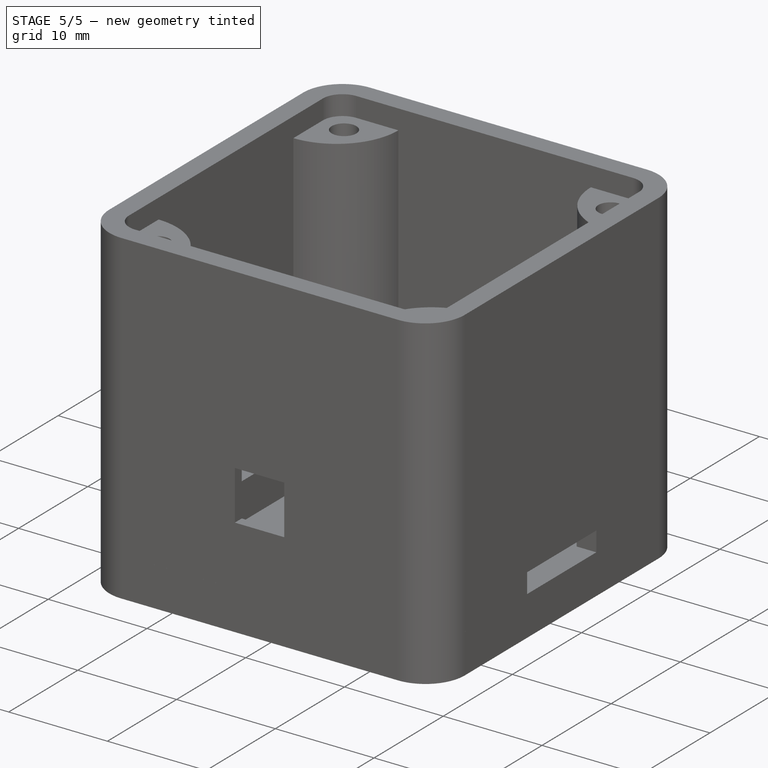
[diagram: stage 5 of 5 — iso view after this stage's code; geometry added in this stage tinted green]
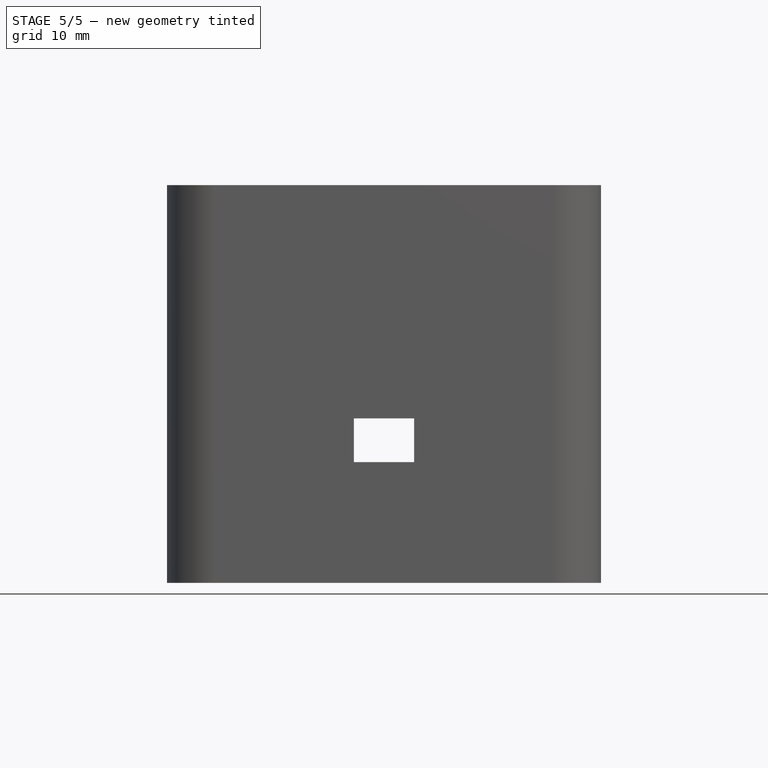
[diagram: stage 5 of 5 — front view after this stage's code; geometry added in this stage tinted green]
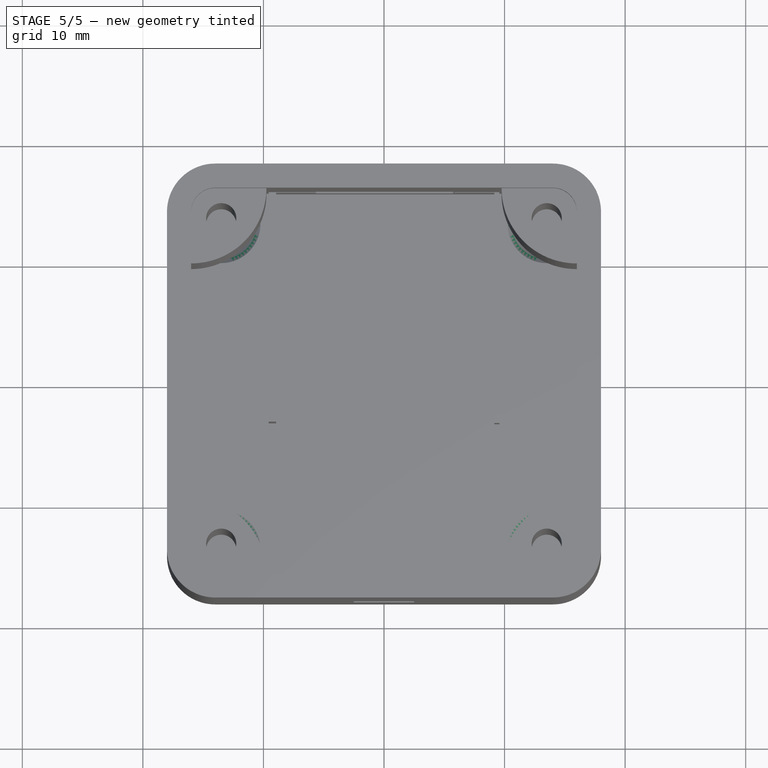
[diagram: stage 5 of 5 — top view after this stage's code; geometry added in this stage tinted green]
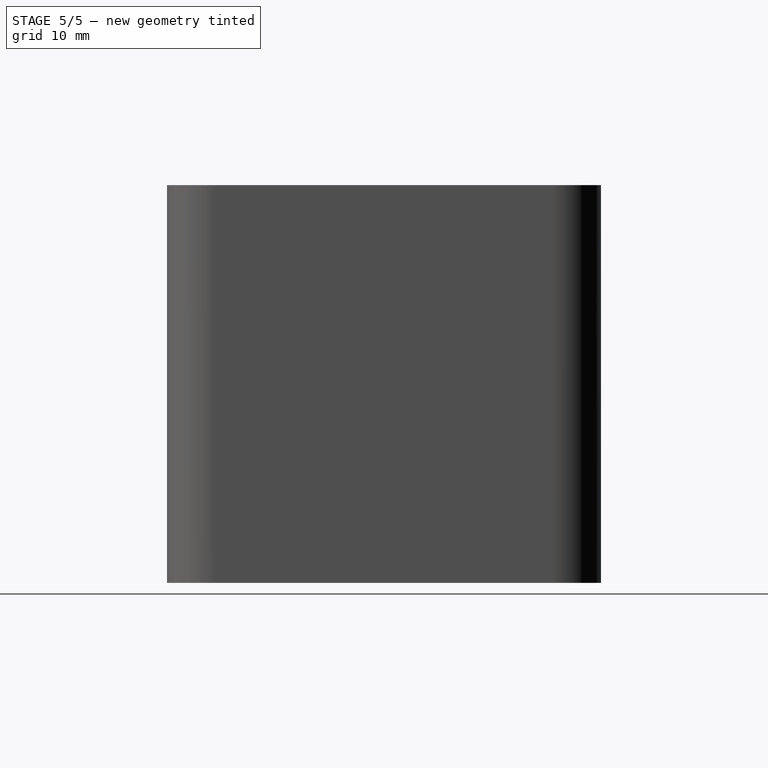
[diagram: stage 5 of 5 — right view after this stage's code; geometry added in this stage tinted green]
FEATURE [PartDesign::Mirrored] Mirrored002
  MirrorPlane = -> Sketch005 [V_Axis]
FEATURE [PartDesign::Mirrored] Mirrored003
  MirrorPlane = -> Sketch005 [H_Axis]
FEATURE [PartDesign::MultiTransform] MultiTransform001
  BaseFeature = -> Pocket001
  Originals = -> [Pocket001]
  Transformations = -> [Mirrored002,Mirrored003]
FEATURE [PartDesign::Chamfer] Chamfer
  Angle = 45
  Base = -> MultiTransform001 [Edge31,Edge32,Edge30,Edge29]
  BaseFeature = -> MultiTransform001
  ChamferType = 0
  FlipDirection = false
  Size = 1
  Size2 = 1
  SupportTransform = false
  UseAllEdges = false
FEATURE [Sketcher::SketchObject] Sketch006
  AttachmentOffset = pos=(0,0,-3) rot=(0,0,1;0rad)
  FullyConstrained = true
  MapMode = 5
  Placement = pos=(0,0,-3) rot=(0,0,1;0rad)
  Support = -> [XY_Plane002]
  sketch-geometry (5):
    g0: LineSegment StartX=28 StartY=22 StartZ=0 EndX=28 EndY=-22 EndZ=0
    g1: LineSegment StartX=28 StartY=-22 StartZ=0 EndX=-28 EndY=-22 EndZ=0
    g2: LineSegment StartX=-28 StartY=-22 StartZ=0 EndX=-28 EndY=22 EndZ=0
    g3: LineSegment StartX=-28 StartY=22 StartZ=0 EndX=28 EndY=22 EndZ=0
    g4: GeomPoint X=0 Y=0 Z=0
  constraints (12):
    c: Coincident(g0,g1)
    c: Coincident(g1,g2)
    c: Coincident(g2,g3)
    c: Coincident(g3,g0)
    c: Horizontal(g1)
    c: Horizontal(g3)
    c: Vertical(g0)
    c: Vertical(g2)
    c: Symmetric(g1,g0,g4)
    c: Coincident(g4,g-1)
    c: DistanceY(g2,g2) = 44
    c: DistanceX(g3,g3) = 56
FEATURE [PartDesign::Pocket] Pocket002
  BaseFeature = -> Chamfer
  Direction = (0,0,-1)
  Length = 3
  Length2 = 5
  Profile = -> Sketch006
  ReferenceAxis = -> Sketch006 [N_Axis]
  Reversed = true
  Type = 0
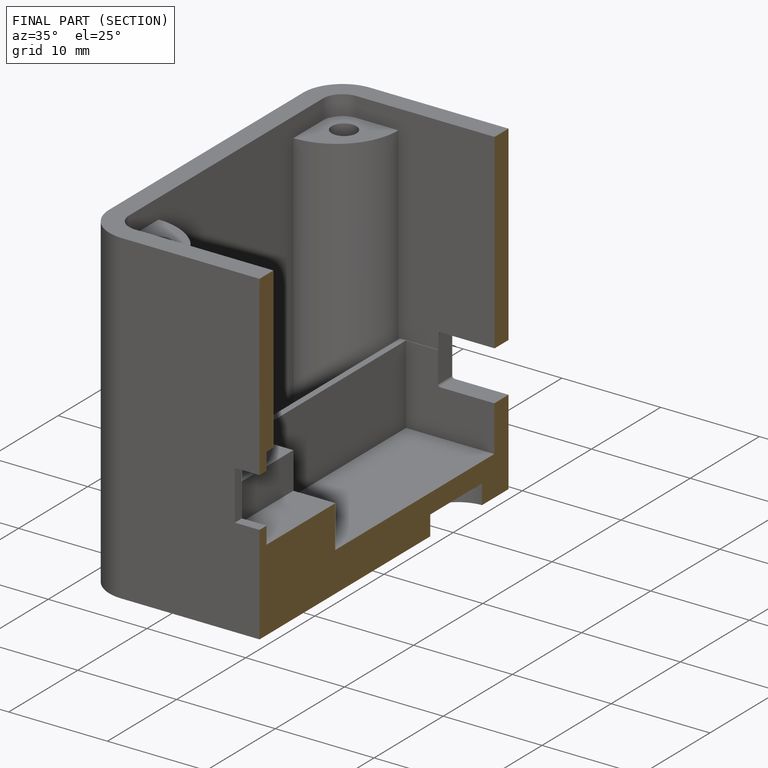
[diagram: finished part — half-section view (interior)]
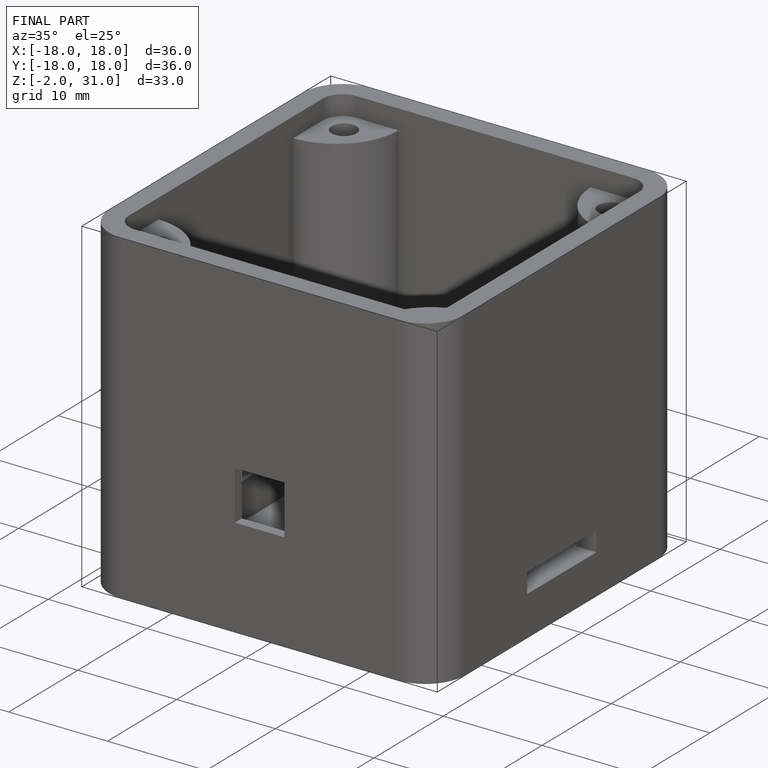
[diagram: finished part — iso view with bounding-box wireframe]
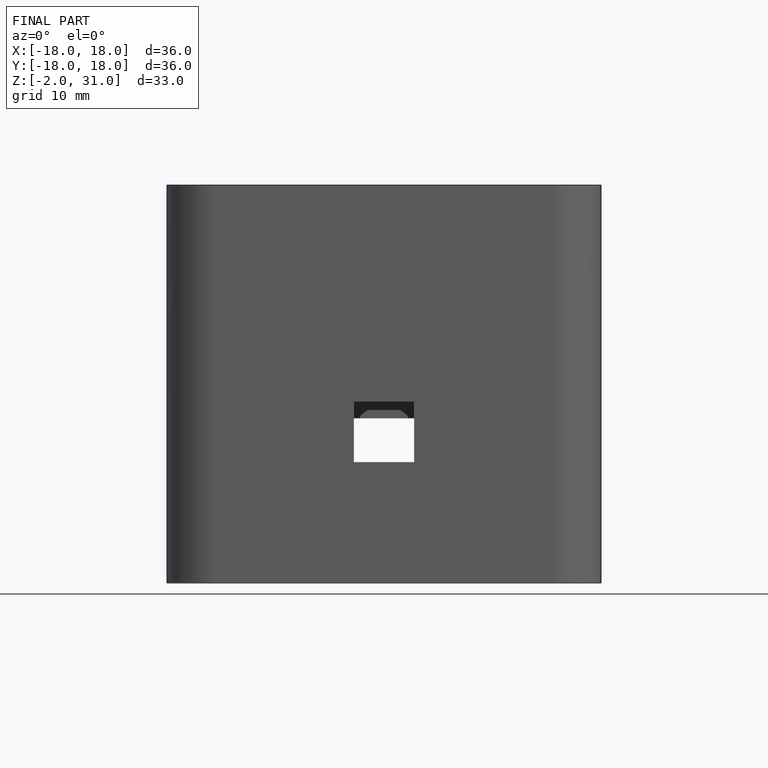
[diagram: finished part — front view with bounding-box wireframe]
